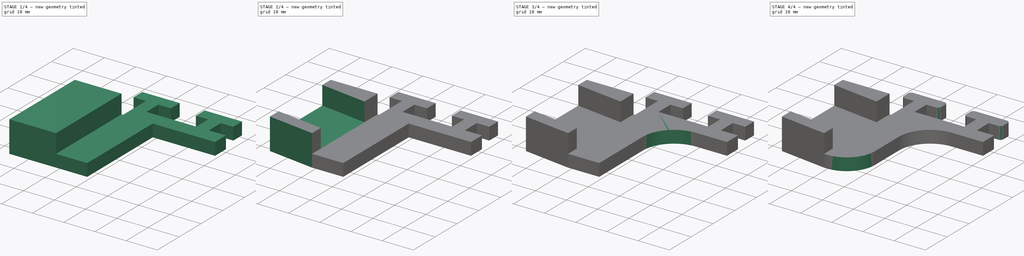
[diagram: build sequence overview — one tinted view per stage of 4, left to right]
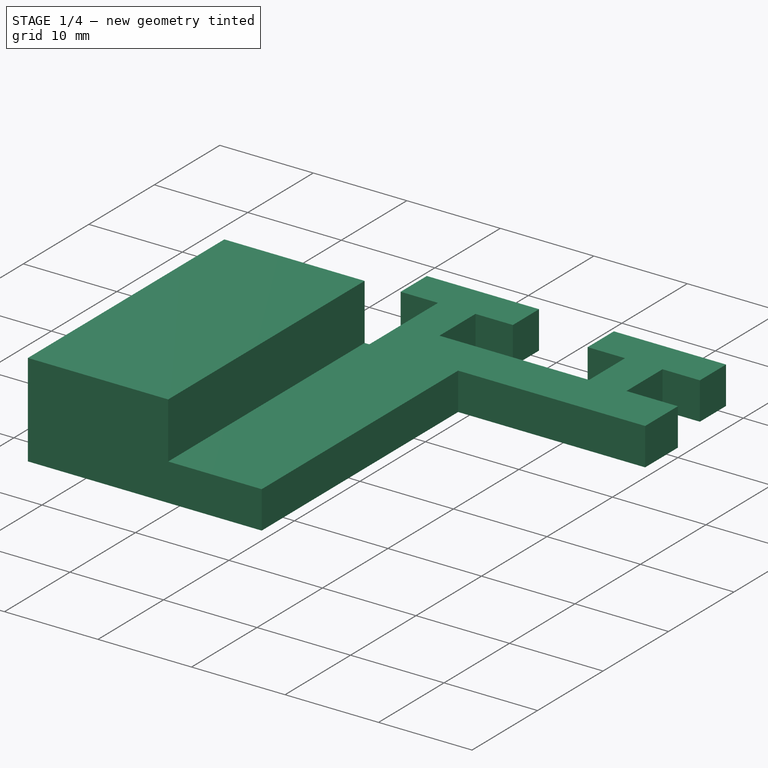
[diagram: stage 1 of 4 — iso view after this stage's code; geometry added in this stage tinted green]
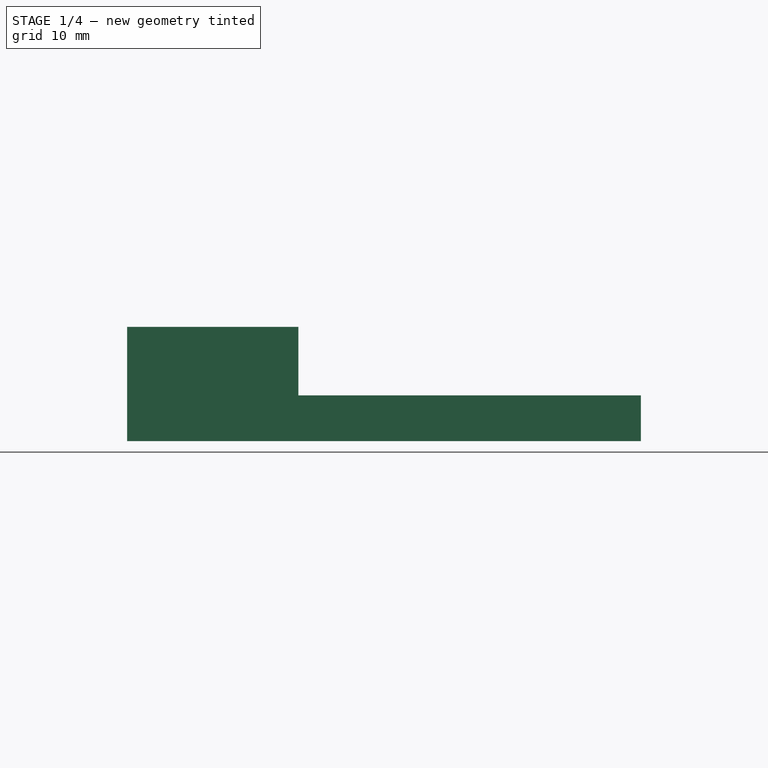
[diagram: stage 1 of 4 — front view after this stage's code; geometry added in this stage tinted green]
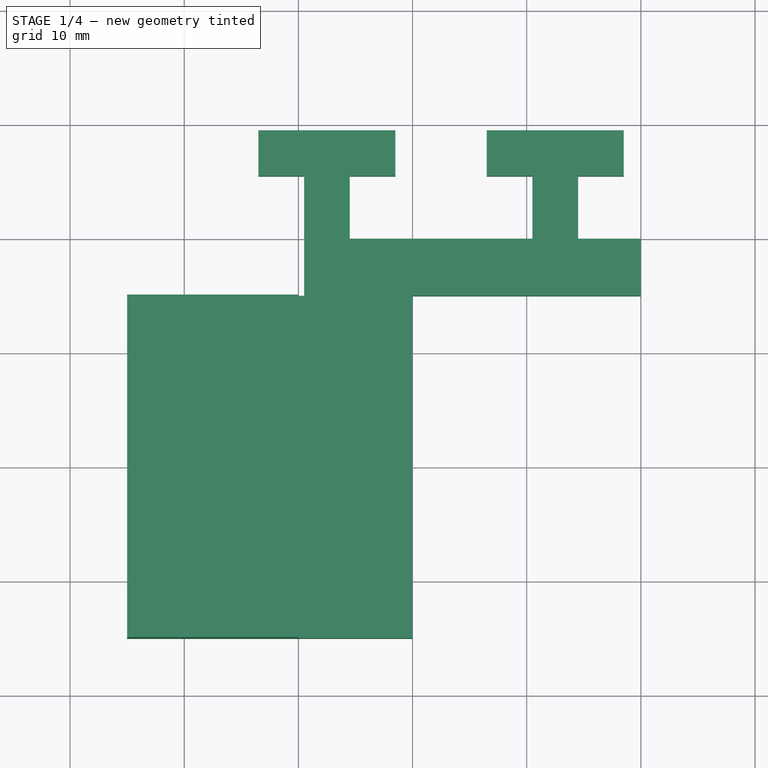
[diagram: stage 1 of 4 — top view after this stage's code; geometry added in this stage tinted green]
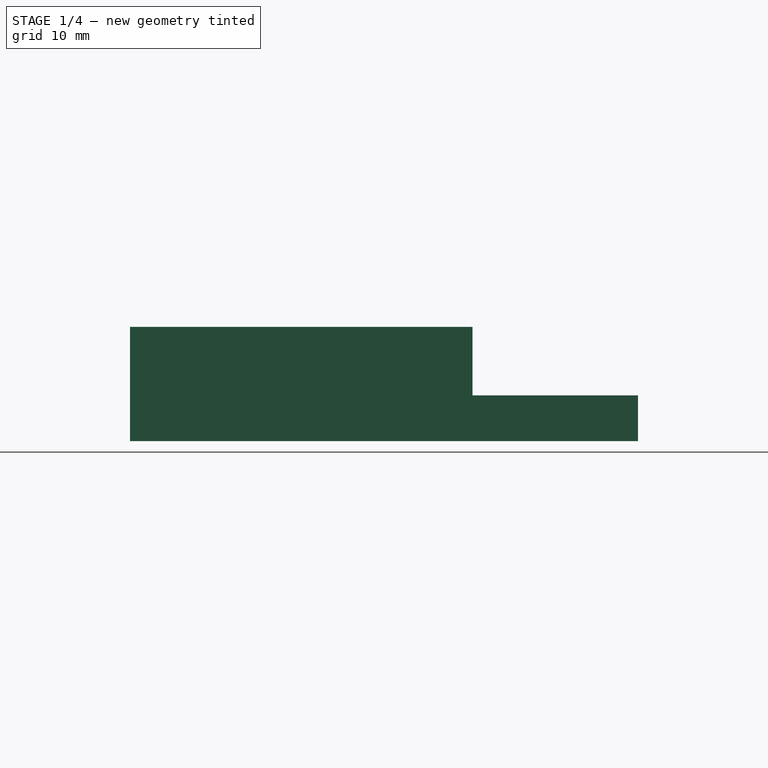
[diagram: stage 1 of 4 — right view after this stage's code; geometry added in this stage tinted green]
FCSTD DOCUMENT  (FreeCAD 0.21R33771 (Git))
Label: door_open_button_mount_v2
License: All rights reserved
LicenseURL: https://en.wikipedia.org/wiki/All_rights_reserved
objects: PartDesign::Fillet×5, Sketcher::SketchObject×4, PartDesign::Pocket×3, PartDesign::Pad×1, PartDesign::Body×1
note: 23 computed .brp shape members not serialized (recipe doc carries the construction recipe); baked Part::Feature solids carry a one-line shape summary decoded from their .brp

FEATURE [Sketcher::SketchObject] Sketch
  FullyConstrained = true
  MapMode = 5
  Support = -> [XY_Plane]
  sketch-geometry (22):
    g0: LineSegment StartX=-63.5 StartY=9.5 StartZ=0 EndX=-63.5 EndY=5.5 EndZ=0
    g1: LineSegment StartX=-63.5 StartY=5.5 StartZ=0 EndX=-59.5 EndY=5.5 EndZ=0
    g2: LineSegment StartX=-59.5 StartY=5.5 StartZ=0 EndX=-59.5 EndY=-5 EndZ=0
    g3: LineSegment StartX=-59.5 StartY=-5 StartZ=0 EndX=-75 EndY=-5 EndZ=0
    g4: LineSegment StartX=-75 StartY=-5 StartZ=0 EndX=-75 EndY=-35 EndZ=0
    g5: LineSegment StartX=-30 StartY=0 StartZ=0 EndX=-35.5 EndY=0 EndZ=0
    g6: LineSegment StartX=-35.5 StartY=0 StartZ=0 EndX=-35.5 EndY=5.5 EndZ=0
    g7: LineSegment StartX=-35.5 StartY=5.5 StartZ=0 EndX=-31.5 EndY=5.5 EndZ=0
    g8: LineSegment StartX=-31.5 StartY=5.5 StartZ=0 EndX=-31.5 EndY=9.5 EndZ=0
    g9: LineSegment StartX=-31.5 StartY=9.5 StartZ=0 EndX=-43.5 EndY=9.5 EndZ=0
    g10: LineSegment StartX=-43.5 StartY=9.5 StartZ=0 EndX=-43.5 EndY=5.5 EndZ=0
    g11: LineSegment StartX=-43.5 StartY=5.5 StartZ=0 EndX=-39.5 EndY=5.5 EndZ=0
    g12: LineSegment StartX=-39.5 StartY=5.5 StartZ=0 EndX=-39.5 EndY=1.8e-15 EndZ=0
    g13: LineSegment StartX=-39.5 StartY=1.8e-15 StartZ=0 EndX=-55.5 EndY=1.8e-15 EndZ=0
    g14: LineSegment StartX=-55.5 StartY=1.8e-15 StartZ=0 EndX=-55.5 EndY=5.5 EndZ=0
    g15: LineSegment StartX=-55.5 StartY=5.5 StartZ=0 EndX=-51.5 EndY=5.5 EndZ=0
    g16: LineSegment StartX=-51.5 StartY=5.5 StartZ=0 EndX=-51.5 EndY=9.5 EndZ=0
    g17: LineSegment StartX=-51.5 StartY=9.5 StartZ=0 EndX=-63.5 EndY=9.5 EndZ=0
    g18: LineSegment StartX=-30 StartY=0 StartZ=0 EndX=-30 EndY=-5 EndZ=0
    g19: LineSegment StartX=-30 StartY=-5 StartZ=0 EndX=-50 EndY=-5 EndZ=0
    g20: LineSegment StartX=-50 StartY=-5 StartZ=0 EndX=-50 EndY=-35 EndZ=0
    g21: LineSegment StartX=-75 StartY=-35 StartZ=0 EndX=-50 EndY=-35 EndZ=0
  constraints (66):
    c: Vertical(g0)
    c: Coincident(g0,g1)
    c: Horizontal(g1)
    c: Coincident(g1,g2)
    c: Vertical(g2)
    c: Coincident(g2,g3)
    c: Horizontal(g3)
    c: Coincident(g3,g4)
    c: Vertical(g4)
    c: Horizontal(g5)
    c: Coincident(g5,g6)
    c: Coincident(g6,g7)
    c: Horizontal(g7)
    c: Coincident(g7,g8)
    c: Vertical(g8)
    c: Coincident(g8,g9)
    c: Horizontal(g9)
    c: Coincident(g9,g10)
    c: Coincident(g10,g11)
    c: Coincident(g11,g12)
    c: Coincident(g12,g13)
    c: Horizontal(g13)
    c: Coincident(g13,g14)
    c: Vertical(g14)
    c: Coincident(g14,g15)
    c: Horizontal(g15)
    c: Coincident(g15,g16)
    c: Vertical(g16)
    c: Coincident(g16,g17)
    c: Coincident(g17,g0)
    c: Horizontal(g17)
    c: Coincident(g18,g5)
    c: Coincident(g19,g18)
    c: Horizontal(g19)
    c: Coincident(g20,g19)
    c: Vertical(g20)
    c: Coincident(g21,g4)
    c: Coincident(g21,g20)
    c: Horizontal(g21)
    c: Vertical(g10)
    c: Vertical(g6)
    c: Horizontal(g11)
    c: DistanceX(g1,g14) = 4
    c: Horizontal(g5,g-1)
    c: DistanceX(g5,g-1) = 30
    c: DistanceY(g18,g18) = 5
    c: DistanceX(g19,g19) = 20
    c: DistanceX(g21,g21) = 25
    c: DistanceY(g4,g4) = 30
    c: Horizontal(g9,g16)
    c: DistanceX(g11,g6) = 4
    c: DistanceX(g13,g13) = 16
    c: Horizontal(g10,g15)
    c: DistanceX(g3,g3) = 15.5
    c: DistanceX(g5,g5) = 5.5
    c: DistanceY(g6,g6) = 5.5
    c: Equal(g6,g12)
    c: Equal(g12,g14)
    c: Horizontal(g1,g14)
    c: DistanceY(g8,g8) = 4
    c: DistanceX(g7,g7) = 4
    c: Equal(g7,g11)
    c: Equal(g11,g15)
    c: Equal(g15,g1)
    c: DistanceY(g0,g0) = 4
    c: Horizontal(g2,g19)
FEATURE [PartDesign::Pad] Pad
  Direction = (0,0,1)
  Length = 10
  Length2 = 10
  Profile = -> Sketch
  ReferenceAxis = -> Sketch [N_Axis]
  Type = 0
FEATURE [Sketcher::SketchObject] Sketch001
  FullyConstrained = true
  MapMode = 5
  Placement = pos=(0,0,10) rot=(0,0,1;0rad)
  Support = -> [Pad]
  sketch-geometry (8):
    g0: LineSegment StartX=0 StartY=15 StartZ=0 EndX=-80 EndY=15 EndZ=0
    g1: LineSegment StartX=-80 StartY=15 StartZ=0 EndX=-80 EndY=-5 EndZ=0
    g2: LineSegment StartX=0 StartY=-5 StartZ=0 EndX=0 EndY=15 EndZ=0
    g3: LineSegment StartX=-60 StartY=-35 StartZ=0 EndX=-60 EndY=-5 EndZ=0
    g4: LineSegment StartX=-50 StartY=-5 StartZ=0 EndX=-50 EndY=-35 EndZ=0
    g5: LineSegment StartX=-60 StartY=-5 StartZ=0 EndX=-80 EndY=-5 EndZ=0
    g6: LineSegment StartX=-50 StartY=-5 StartZ=0 EndX=0 EndY=-5 EndZ=0
    g7: LineSegment StartX=-50 StartY=-35 StartZ=0 EndX=-60 EndY=-35 EndZ=0
  constraints (24):
    c: Coincident(g0,g1)
    c: Coincident(g2,g0)
    c: Horizontal(g0)
    c: Vertical(g1)
    c: Vertical(g2)
    c: Vertical(g2,g-1)
    c: DistanceY(g2,g-1) = 5
    c: DistanceY(g2,g2) = 20
    c: DistanceX(g0,g0) = 80
    c: Vertical(g3)
    c: Vertical(g4)
    c: Coincident(g5,g3)
    c: Coincident(g5,g1)
    c: Horizontal(g5)
    c: Coincident(g6,g4)
    c: Coincident(g6,g2)
    c: Horizontal(g6)
    c: DistanceX(g6,g6) = 50
    c: DistanceY(g4,g4) = 30
    c: DistanceY(g1,g1) = 20
    c: DistanceX(g5,g5) = 20
    c: Coincident(g4,g7)
    c: Horizontal(g7)
    c: Coincident(g3,g7)
FEATURE [PartDesign::Pocket] Pocket
  BaseFeature = -> Pad
  Direction = (0,0,-1)
  Length = 6
  Length2 = 5
  Profile = -> Sketch001
  ReferenceAxis = -> Sketch001 [N_Axis]
  Type = 0
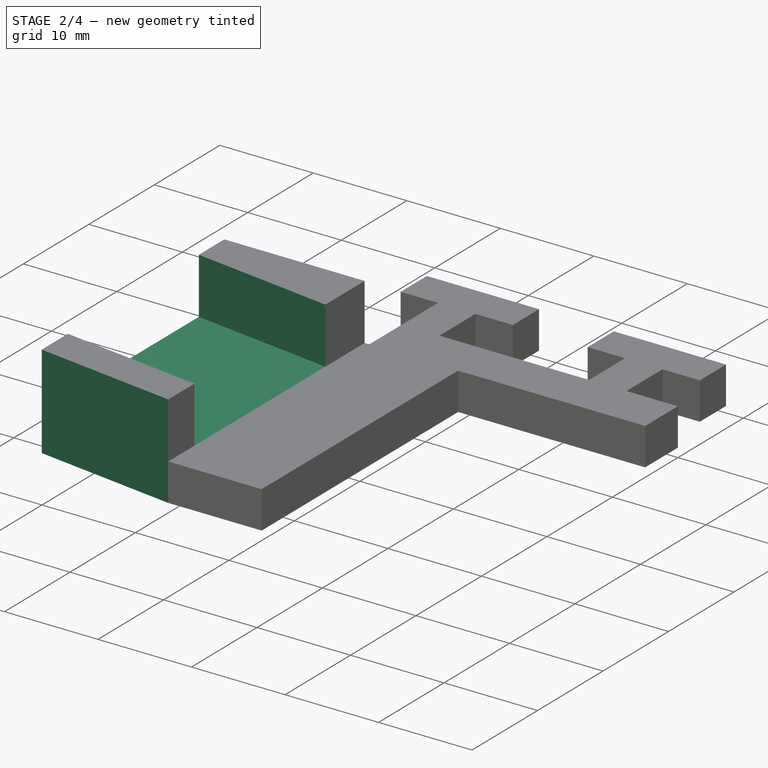
[diagram: stage 2 of 4 — iso view after this stage's code; geometry added in this stage tinted green]
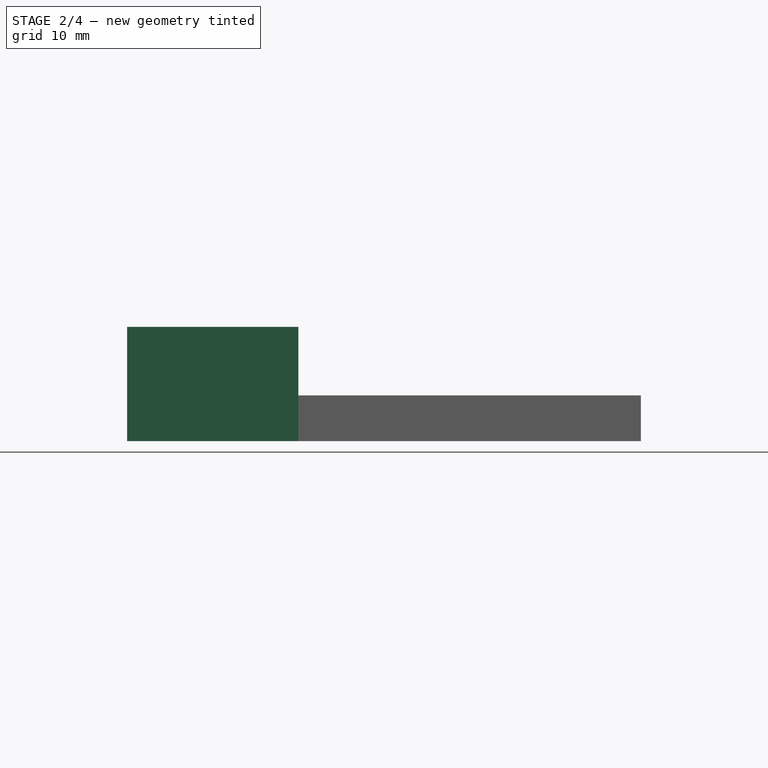
[diagram: stage 2 of 4 — front view after this stage's code; geometry added in this stage tinted green]
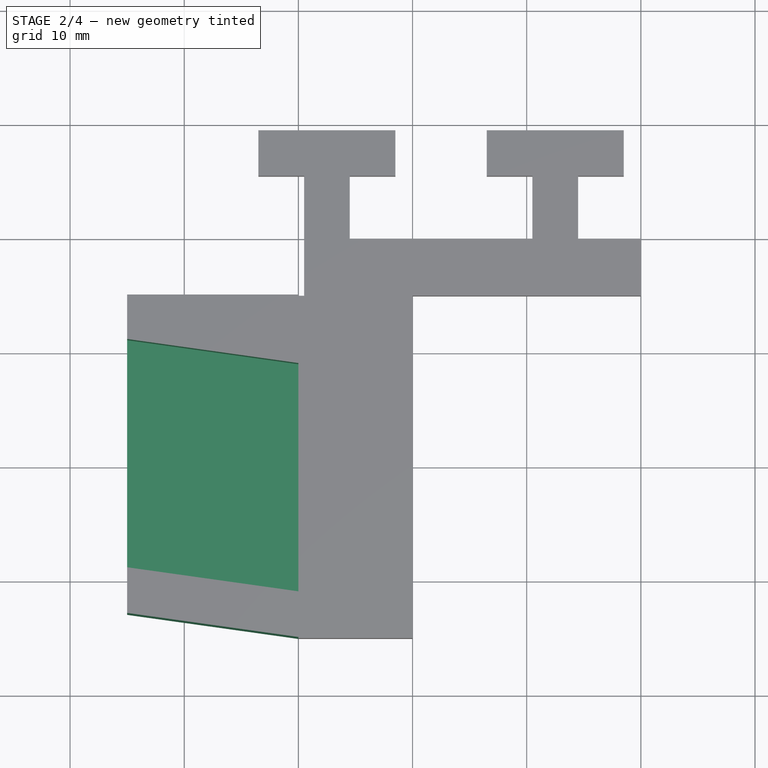
[diagram: stage 2 of 4 — top view after this stage's code; geometry added in this stage tinted green]
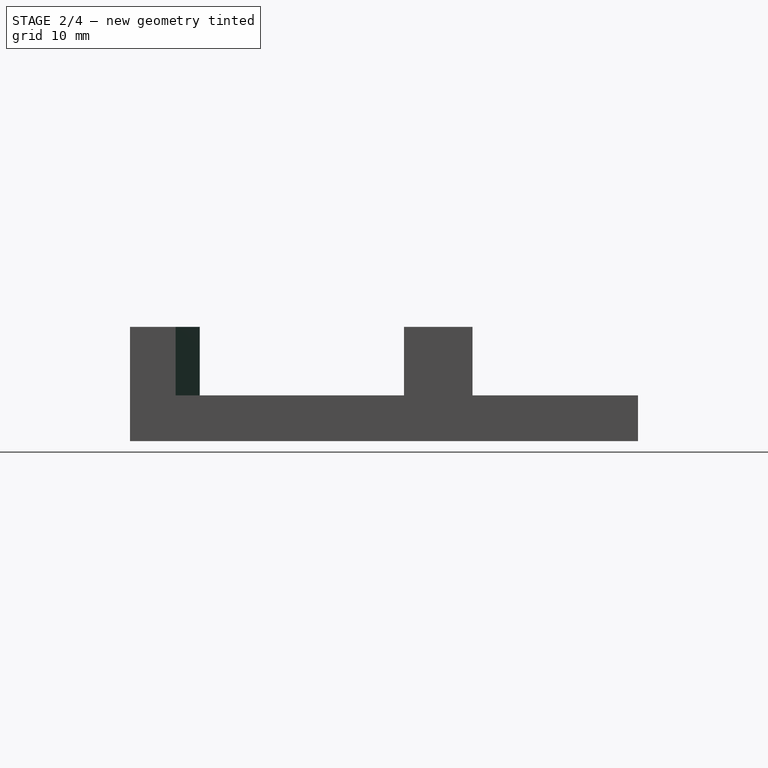
[diagram: stage 2 of 4 — right view after this stage's code; geometry added in this stage tinted green]
FEATURE [Sketcher::SketchObject] Sketch002
  FullyConstrained = true
  MapMode = 5
  Placement = pos=(0,0,10) rot=(0,0,1;0rad)
  Support = -> [Pocket]
  sketch-geometry (4):
    g0: LineSegment StartX=-80 StartY=-8.18918 StartZ=0 EndX=-60 EndY=-11 EndZ=0
    g1: LineSegment StartX=-60 StartY=-11 StartZ=0 EndX=-60 EndY=-31 EndZ=0
    g2: LineSegment StartX=-60 StartY=-31 StartZ=0 EndX=-80 EndY=-28.1892 EndZ=0
    g3: LineSegment StartX=-80 StartY=-28.1892 StartZ=0 EndX=-80 EndY=-8.18918 EndZ=0
  constraints (12):
    c: Coincident(g0,g1)
    c: Vertical(g1)
    c: Coincident(g1,g2)
    c: Coincident(g2,g3)
    c: Coincident(g3,g0)
    c: Vertical(g3)
    c: Angle(g0,g1) = 1.71042
    c: Equal(g1,g3)
    c: DistanceY(g3,g3) = 20
    c: DistanceX(g0,g-1) = 60
    c: DistanceY(g0,g-1) = 11
    c: DistanceX(g0,g0) = 20
FEATURE [PartDesign::Pocket] Pocket001
  BaseFeature = -> Pocket
  Direction = (0,0,-1)
  Length = 6
  Length2 = 5
  Profile = -> Sketch002
  ReferenceAxis = -> Sketch002 [N_Axis]
  Type = 0
FEATURE [Sketcher::SketchObject] Sketch003
  FullyConstrained = true
  MapMode = 5
  Placement = pos=(0,0,10) rot=(0,0,1;0rad)
  Support = -> [Pocket001]
  sketch-geometry (4):
    g0: LineSegment StartX=-60 StartY=-35 StartZ=0 EndX=-80 EndY=-32.1892 EndZ=0
    g1: LineSegment StartX=-80 StartY=-32.1892 StartZ=0 EndX=-80 EndY=-40 EndZ=0
    g2: LineSegment StartX=-80 StartY=-40 StartZ=0 EndX=-60 EndY=-40 EndZ=0
    g3: LineSegment StartX=-60 StartY=-40 StartZ=0 EndX=-60 EndY=-35 EndZ=0
  constraints (12):
    c: Coincident(g0,g1)
    c: Coincident(g1,g2)
    c: Horizontal(g2)
    c: Coincident(g2,g3)
    c: Coincident(g3,g0)
    c: DistanceY(g0,g-1) = 35
    c: Vertical(g3)
    c: Vertical(g1)
    c: Angle(g0,g3) = 1.71042
    c: DistanceX(g0,g-1) = 60
    c: DistanceX(g2,g2) = 20
    c: DistanceY(g3,g3) = 5
FEATURE [PartDesign::Pocket] Pocket002
  BaseFeature = -> Pocket001
  Direction = (0,0,-1)
  Length = 11
  Length2 = 5
  Profile = -> Sketch003
  ReferenceAxis = -> Sketch003 [N_Axis]
  Type = 0
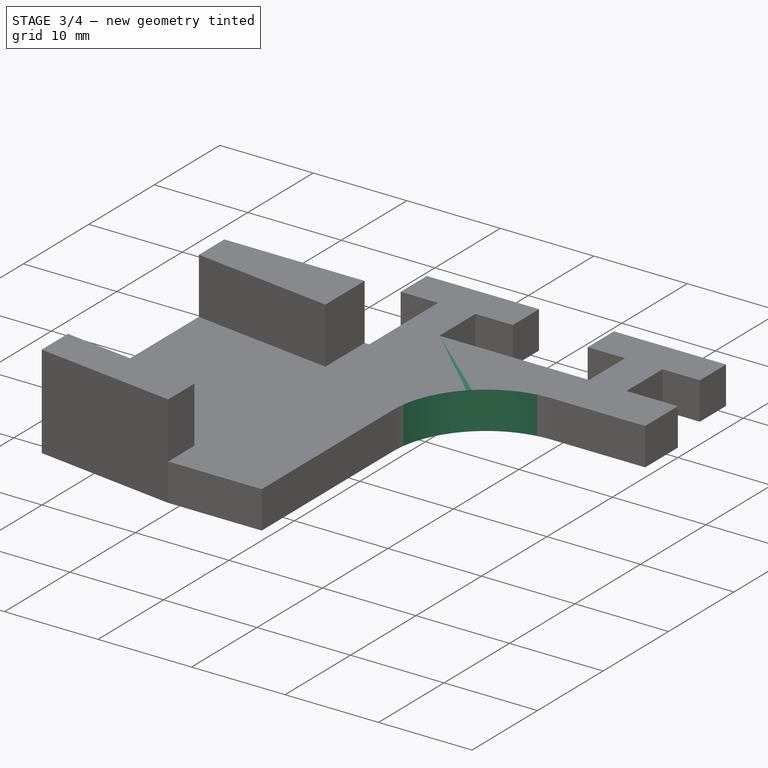
[diagram: stage 3 of 4 — iso view after this stage's code; geometry added in this stage tinted green]
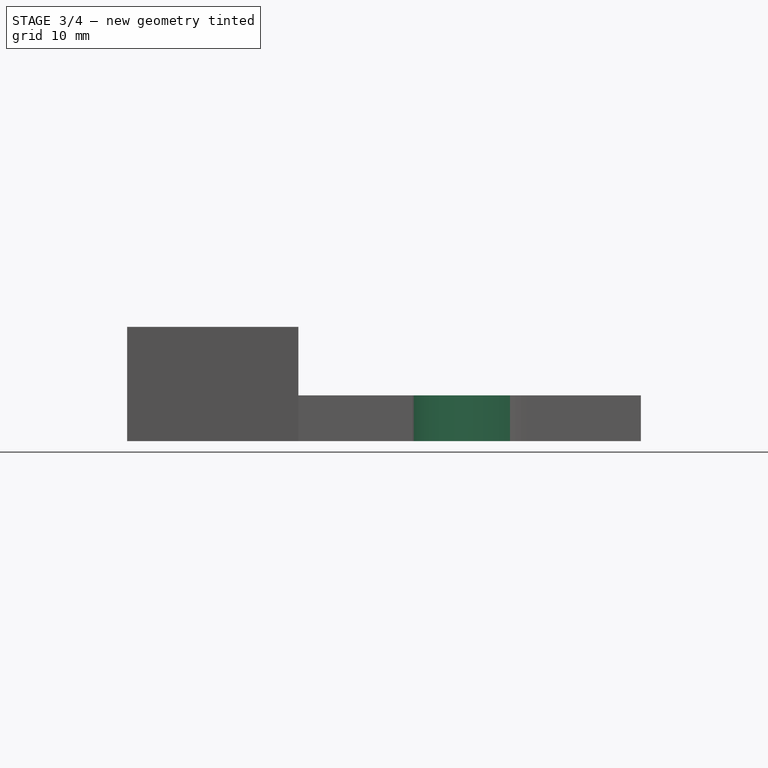
[diagram: stage 3 of 4 — front view after this stage's code; geometry added in this stage tinted green]
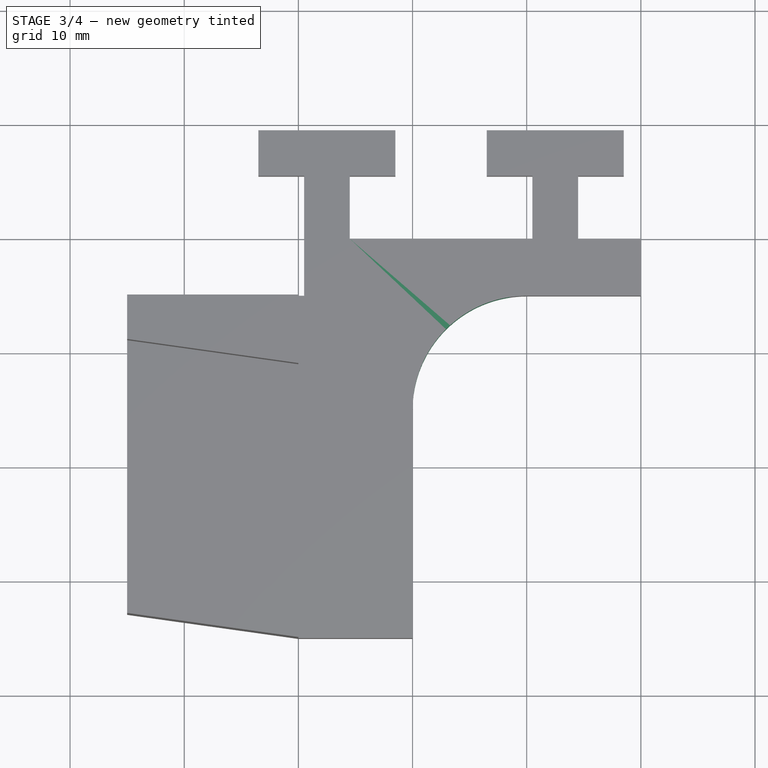
[diagram: stage 3 of 4 — top view after this stage's code; geometry added in this stage tinted green]
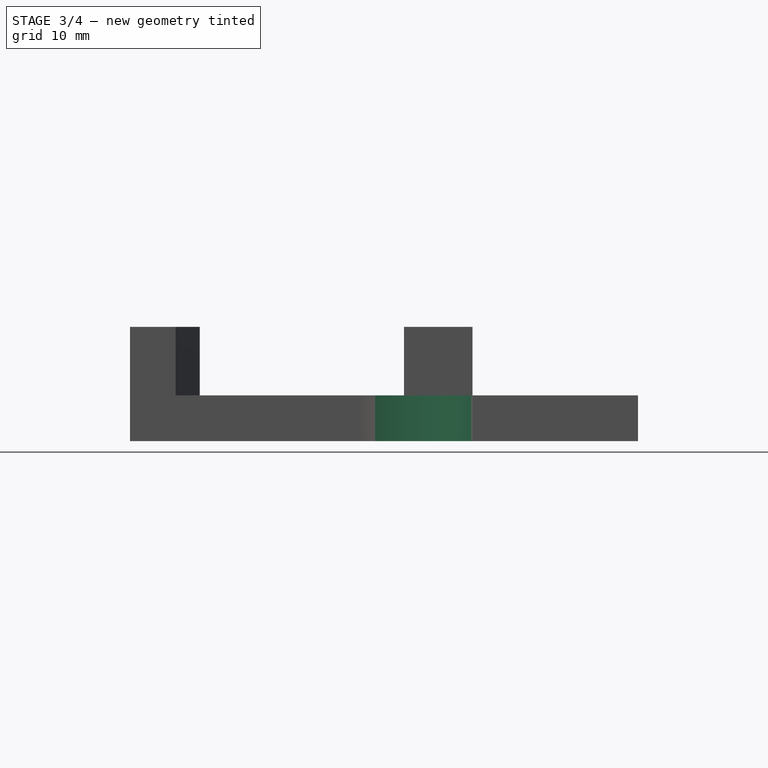
[diagram: stage 3 of 4 — right view after this stage's code; geometry added in this stage tinted green]
FEATURE [PartDesign::Fillet] Fillet001
  Base = -> Pocket002
  BaseFeature = -> Pocket002
  Radius = 10
  SupportTransform = false
  UseAllEdges = false
FEATURE [PartDesign::Fillet] Fillet003
  Base = -> Fillet001
  BaseFeature = -> Fillet001
  Radius = 1
  SupportTransform = false
  UseAllEdges = false
FEATURE [PartDesign::Fillet] Fillet
  Base = -> Fillet003 [Edge53]
  BaseFeature = -> Fillet003
  Radius = 10
  SupportTransform = false
  UseAllEdges = false
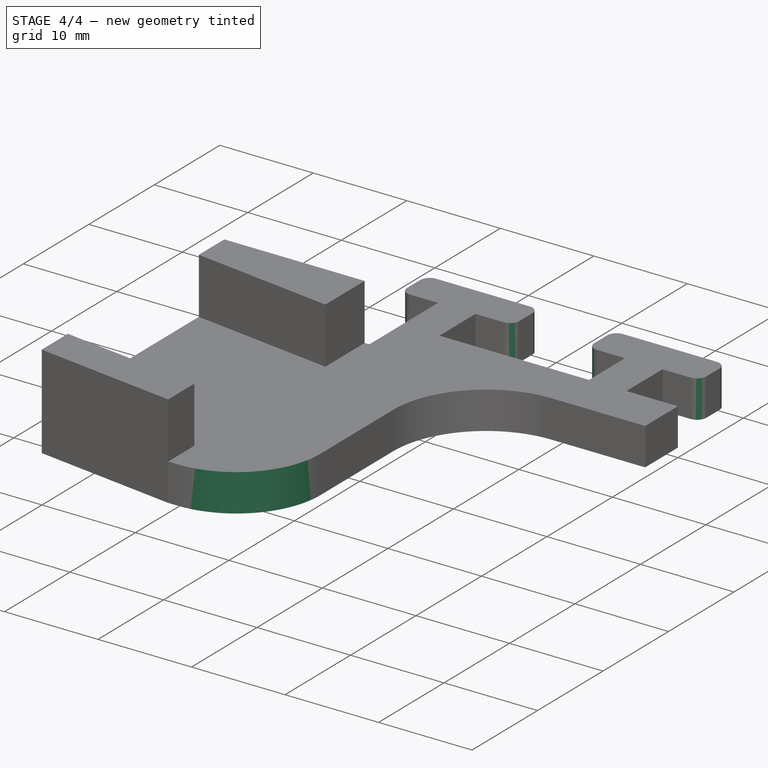
[diagram: stage 4 of 4 — iso view after this stage's code; geometry added in this stage tinted green]
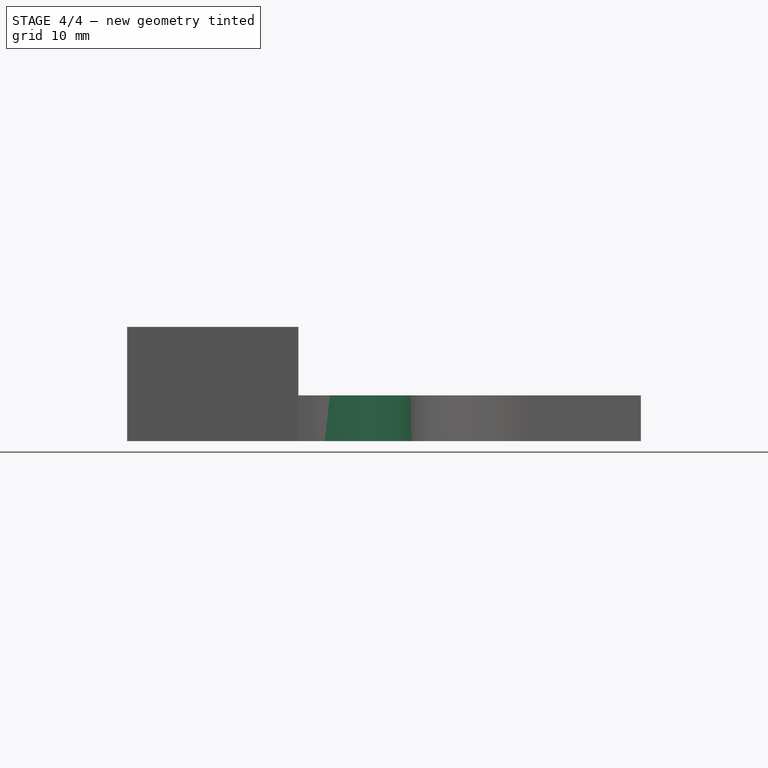
[diagram: stage 4 of 4 — front view after this stage's code; geometry added in this stage tinted green]
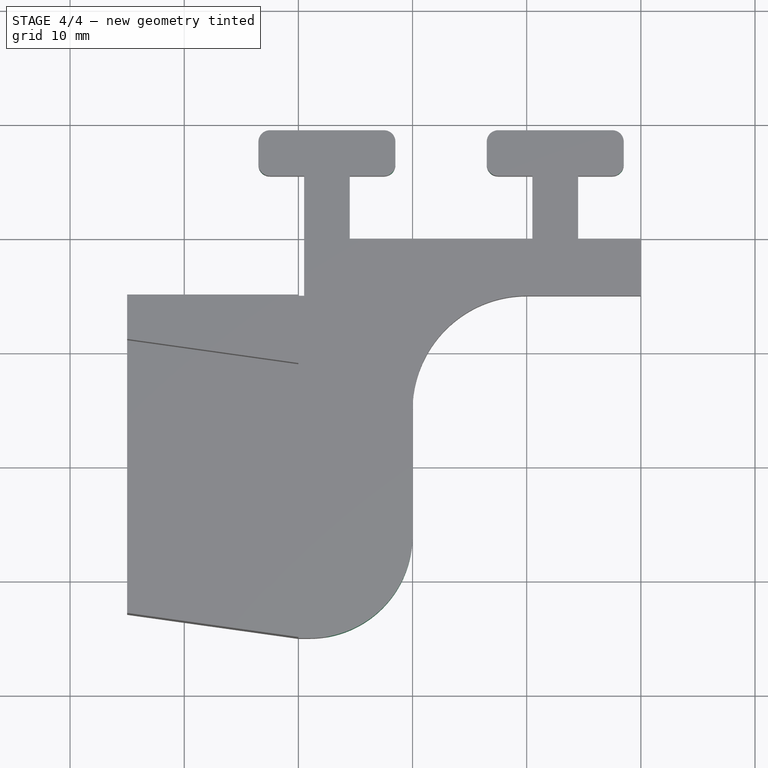
[diagram: stage 4 of 4 — top view after this stage's code; geometry added in this stage tinted green]
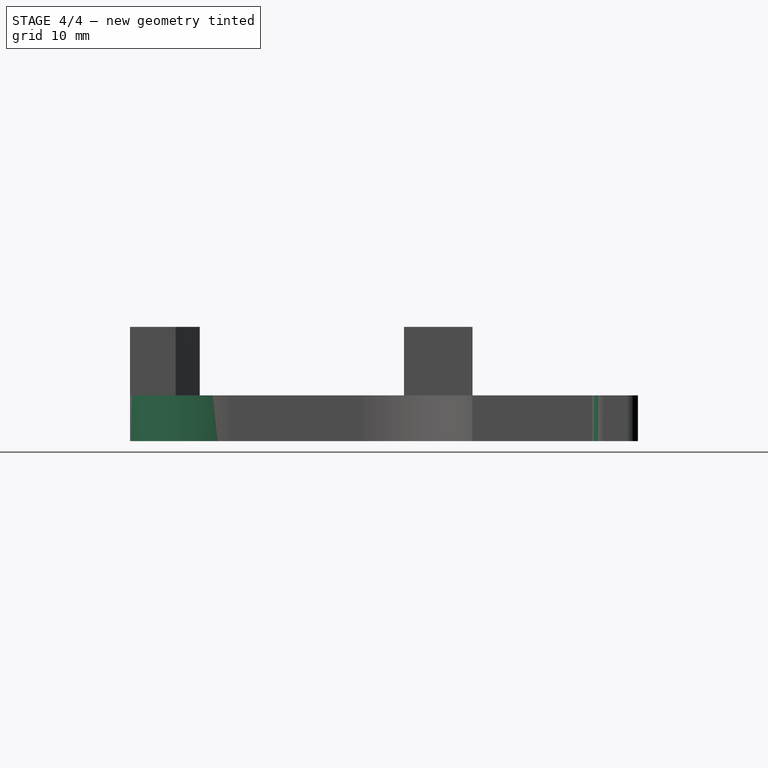
[diagram: stage 4 of 4 — right view after this stage's code; geometry added in this stage tinted green]
FEATURE [PartDesign::Fillet] Fillet004
  Base = -> Fillet [Edge32]
  BaseFeature = -> Fillet
  Radius = 9
  SupportTransform = false
  UseAllEdges = false
FEATURE [PartDesign::Fillet] Fillet005
  Base = -> Fillet004 [Edge69,Edge73,Edge70,Edge58,Edge62,Edge61,Edge66,Edge65]
  BaseFeature = -> Fillet004
  Radius = 1
  SupportTransform = false
  UseAllEdges = false
FEATURE [PartDesign::Body] Body
  Group = -> [Sketch,Pad,Sketch001,Pocket,Sketch002,Pocket001,Sketch003,Pocket002,Fillet001,Fillet003,Fillet,Fillet004,Fillet005]
  Origin = -> Origin
  Tip = -> Fillet005
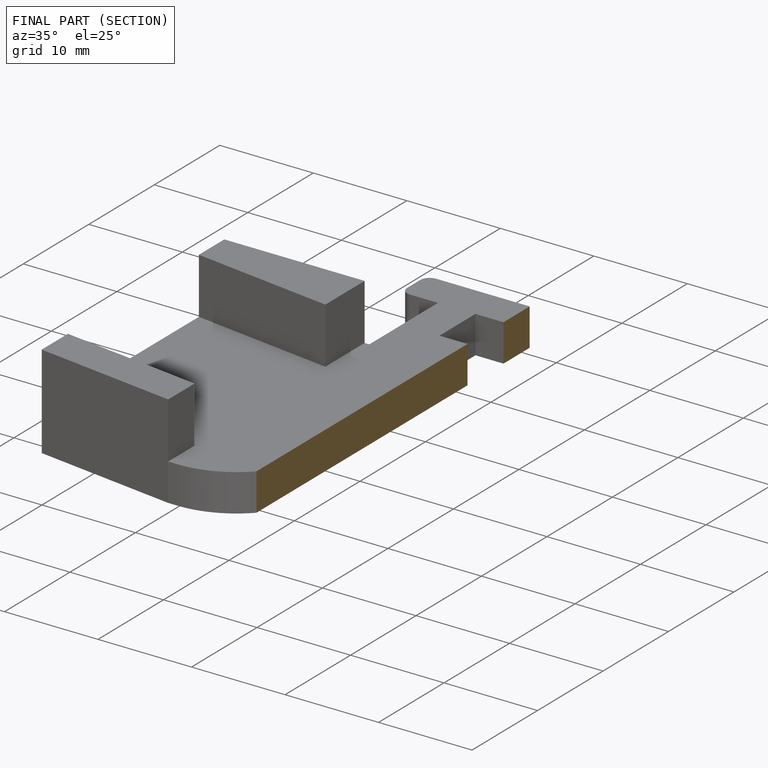
[diagram: finished part — half-section view (interior)]
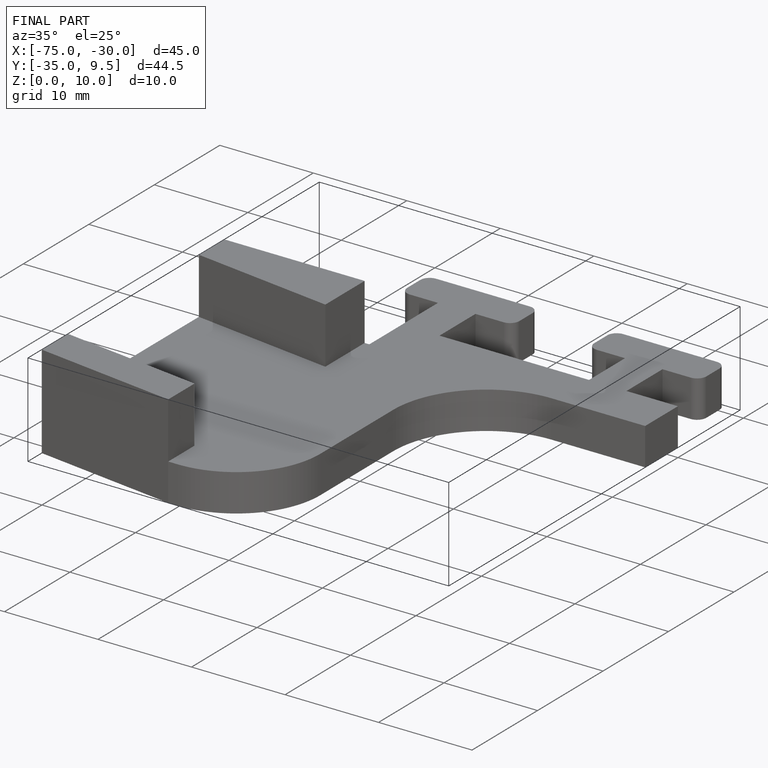
[diagram: finished part — iso view with bounding-box wireframe]
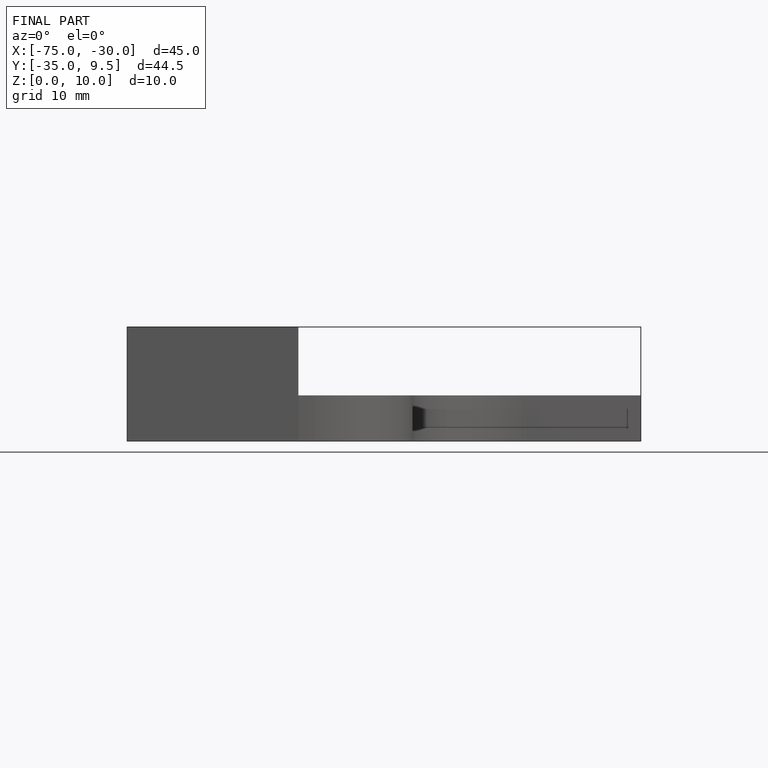
[diagram: finished part — front view with bounding-box wireframe]
